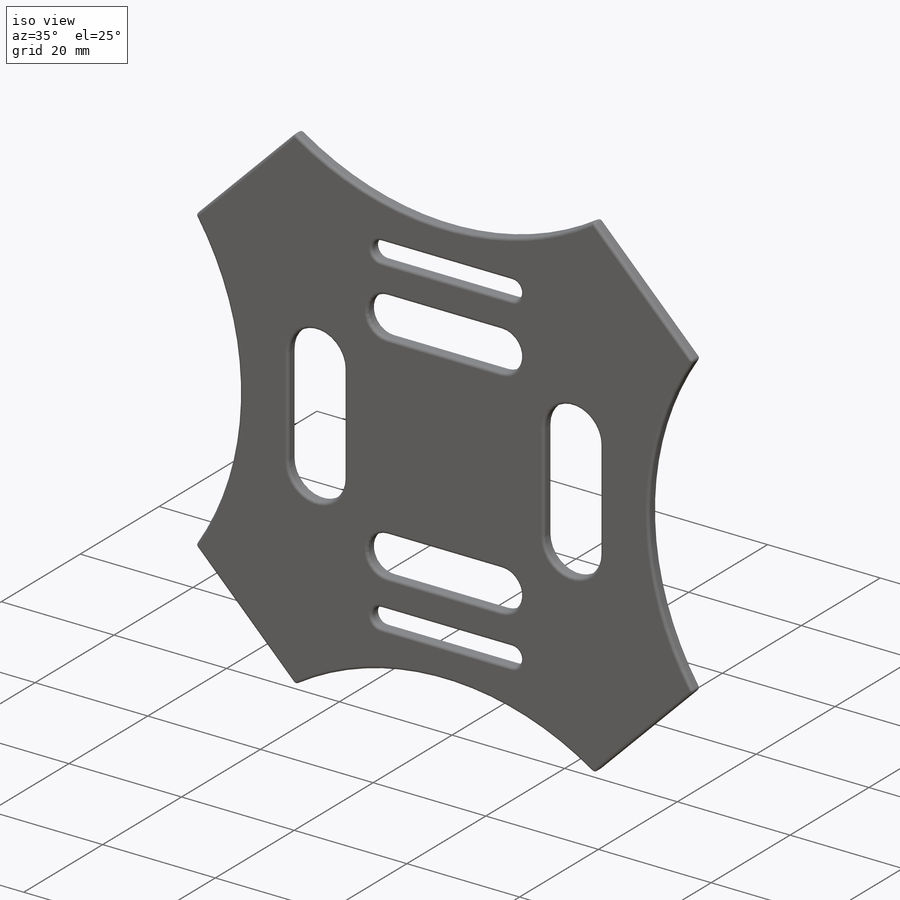
[diagram: iso view]
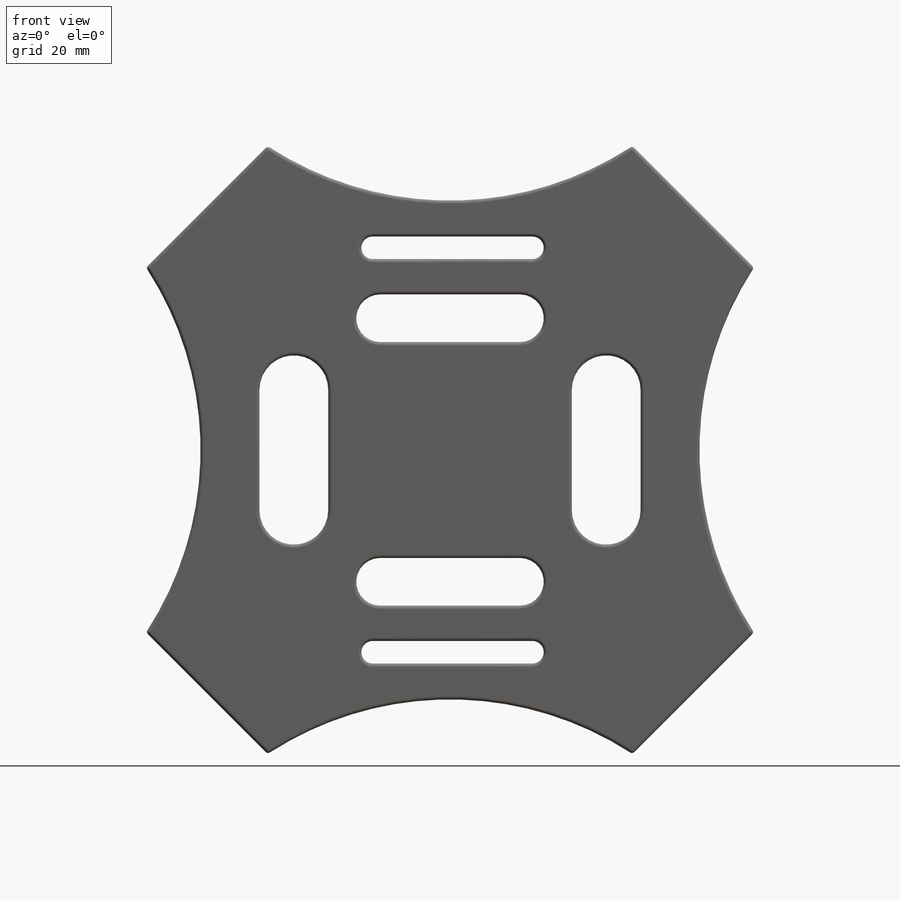
[diagram: front view]
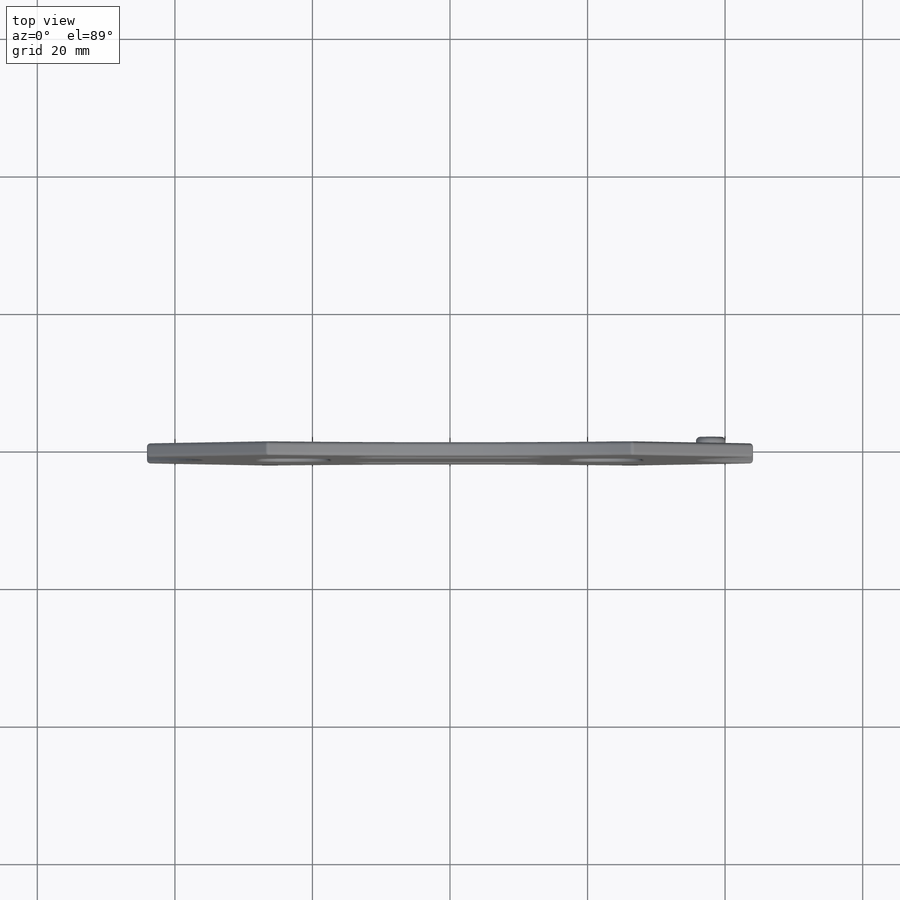
[diagram: top view]
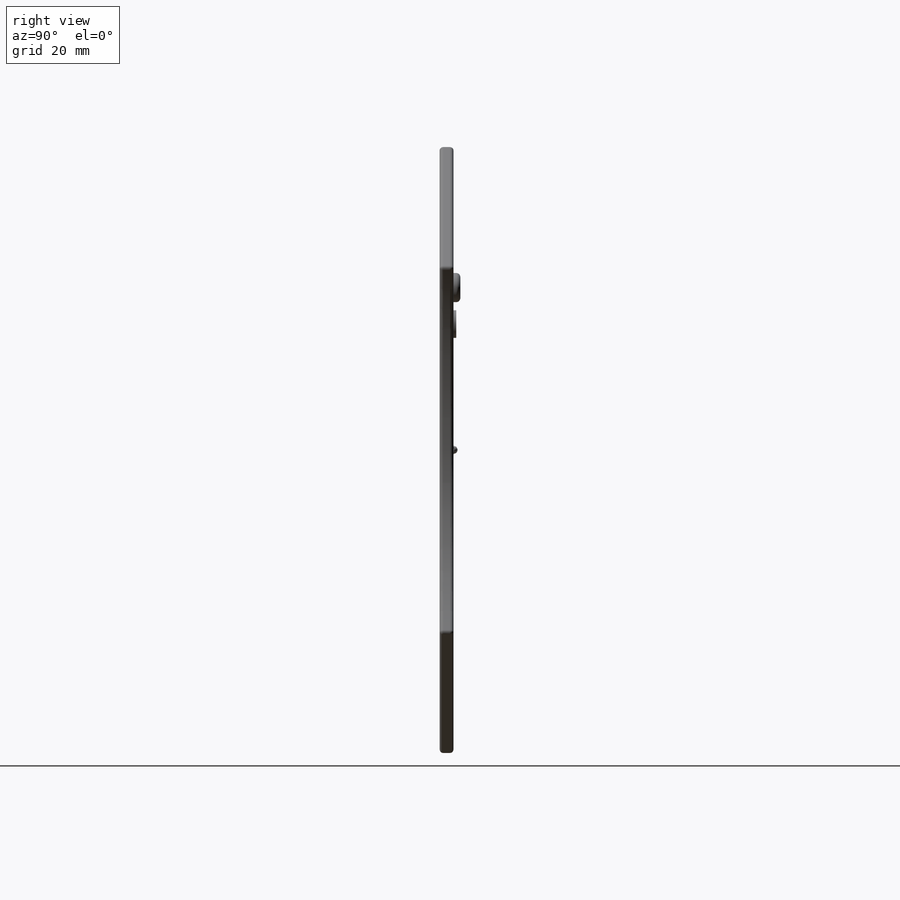
[diagram: right view]
SOLIDWORKS PART (.sldprt)
format: sldprt  version: not decoded by parser v0  size: 1,715,712 bytes
history: native  units: mm
features: sketch x3, fillet x3, mirror x3, extrude x2, material x1, cut_extrude x1, plane x1 (+13 scaffold rows collapsed)
feature tree (27):
  scaffold x13  (default folders/planes/origin — collapsed)
  material  "A-Glass Fiber"
  sketch  "Sketch1"  dims[c1.D1=125.0mm c1.D2=~88.388348mm c2.D2=45.0deg c2.D3=~29.11901mm c3.D2=25.0mm]
  extrude  "Boss-Extrude1"  Depth=2mm
  sketch  "Sketch2"  dims[D1=5.0mm]
  cut_extrude  "Cut-Extrude1"  Depth=10mm
  sketch  "Sketch3"
  extrude  "Boss-Extrude2"  Depth=1mm
  plane  "Plane1"
  fillet  "Fillet1"  Radius=0.5mm
  fillet  "Fillet2"  Radius=0.6mm
  fillet  "Fillet3"  Radius=0.6mm
  mirror  "Mirror2"
  mirror  "Mirror3"
  mirror  "Mirror4"
decode coverage: 8 of 12 modeling features carry decoded parameters
note: ~ marks probable driven/reference dimensions
note: suppression state not decoded; provenance and decode notes live in map.json
